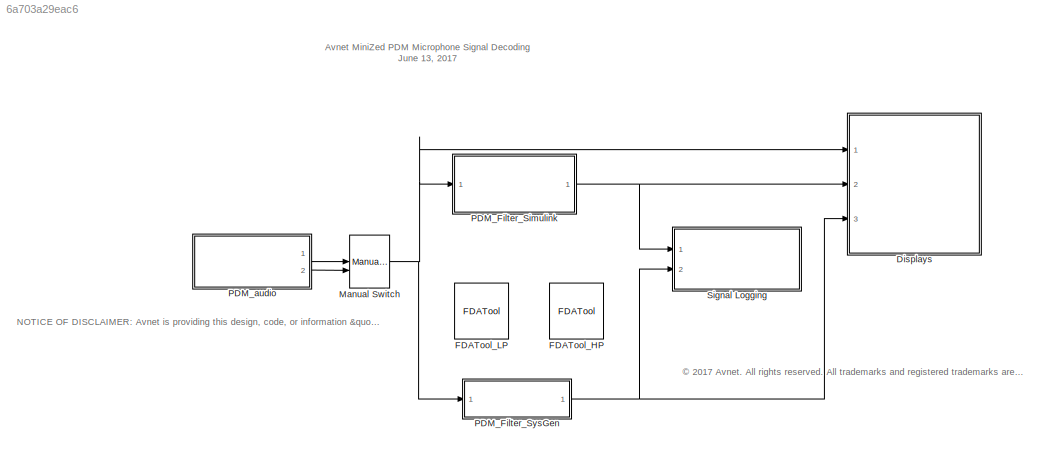
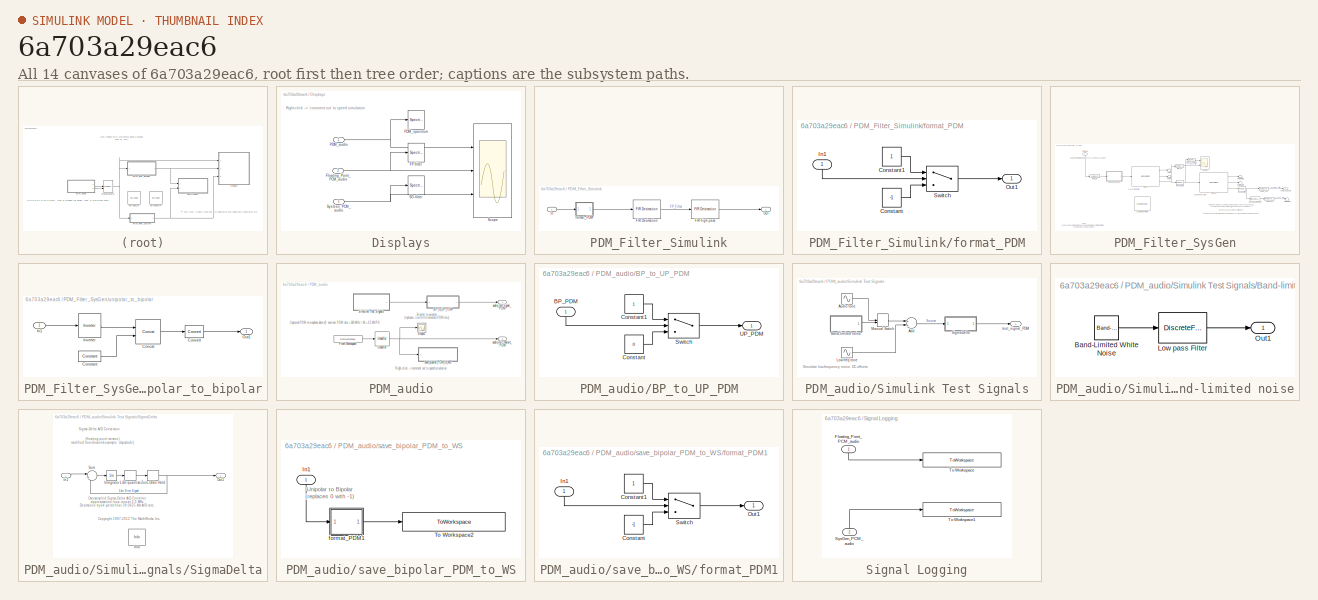
[diagram: thumbnail index - all 14 canvases of the model, root first then tree order]
MODEL slx_6a703a29eac6
KIND model
CONFIG AbsTol = 1e-6
CONFIG EnableMultiTasking = off
CONFIG FixedStep = auto
CONFIG MaxStep = 1/512000
CONFIG MinStep = auto
CONFIG PreLoadFcn = input_rate = 2.5e6;\ninput_period = 1/input_rate;\ndecimation_factor = 64;\n\n\nila_PDM_data = read_vectored_ILA_PDM_capture('.\ILA_capture\iladata_A440_vectors_1024.csv');\n% ila_PDM_data = read_vectored_ILA_PDM_capture('.\ILA_capture\iladata_speech_vectors_1024.csv');\n\nila_data_struct.time = [];\nila_data_struct.signals.values = ila_PDM_data;
CONFIG RelTol = 1e-3
CONFIG SampleTimeConstraint = Unconstrained
CONFIG Solver = ode5
CONFIG SolverName = ode5
CONFIG StartTime = 0.0
CONFIG StopFcn = p = audioplayer(squeeze(simout_sysgen_PCM_audio.Data), input_rate/decimation_factor);\nplay(p, [1 (get(p, 'SampleRate') * 1)]);\n\n% p = audioplayer(squeeze(simout_floating_point_PCM_audio.Data), input_rate/decimation_factor);\n% play(p, [1 (get(p, 'SampleRate') * 1)]);
CONFIG StopTime = 2*pi*200000/2.4e6
BLOCK [SubSystem] Displays
  Ports = [3]
  RequestExecContextInheritance = off
  Variant = off
BLOCK [SpectrumAnalyzer] Displays/FP-filter
  Commented = on
  NumInputPorts = 1
  Ports = [1]
  ScopeSpecificationString = spbscopes.SpectrumAnalyzerBlockCfg('CurrentConfiguration', extmgr.ConfigurationSet(extmgr.Configuration('Core','General UI',true),extmgr.Configuration('Core','Source UI',true),extmgr.Configuration('Sources','WiredSimulink',true),extmgr.Configuration('Sources','Simulink',false),extmgr.Configuration('Sources','File',false),extmgr.Configuration('Sources','Workspace',false),extmgr.Configuration('Sourc...<+1890ch>
BLOCK [Inport] Displays/Floating_Point_PCM_audio
  IconDisplay = Port number
  Port = 2
BLOCK [Inport] Displays/PDM_audio
  IconDisplay = Port number
BLOCK [SpectrumAnalyzer] Displays/PDM_spectrum
  Commented = on
  NumInputPorts = 1
  Ports = [1]
  ScopeSpecificationString = spbscopes.SpectrumAnalyzerBlockCfg('CurrentConfiguration', extmgr.ConfigurationSet(extmgr.Configuration('Core','General UI',true),extmgr.Configuration('Core','Source UI',true),extmgr.Configuration('Sources','WiredSimulink',true),extmgr.Configuration('Sources','Simulink',false),extmgr.Configuration('Sources','File',false),extmgr.Configuration('Sources','Workspace',false),extmgr.Configuration('Sourc...<+2104ch>
BLOCK [SpectrumAnalyzer] Displays/SG-filter
  Commented = on
  NumInputPorts = 1
  Ports = [1]
  ScopeSpecificationString = spbscopes.SpectrumAnalyzerBlockCfg('CurrentConfiguration', extmgr.ConfigurationSet(extmgr.Configuration('Core','General UI',true),extmgr.Configuration('Core','Source UI',true),extmgr.Configuration('Sources','WiredSimulink',true),extmgr.Configuration('Sources','Streaming',false),extmgr.Configuration('Sources','Simulink',false),extmgr.Configuration('Sources','SPTool',false),extmgr.Configuration('Sou...<+1886ch>
BLOCK [Scope] Displays/Scope
  Commented = on
  NumInputPorts = 3
  Ports = [3]
  ScopeSpecificationString = Simulink.scopes.TimeScopeBlockCfg('CurrentConfiguration', extmgr.ConfigurationSet(extmgr.Configuration('Core','General UI',true),extmgr.Configuration('Core','Source UI',true),extmgr.Configuration('Sources','WiredSimulink',true,'DataLoggingVariableName','ScopeData1','DataLoggingSaveFormat','StructureWithTime','DataLoggingMaxPoints','90000','DataLoggingDecimation','1','DataLoggingDecimateData',true)...<+3175ch>
BLOCK [Inport] Displays/SysGen_PCM_audio
  IconDisplay = Port number
  Port = 3
BLOCK [Reference] FDATool_HP  REF=xbsIndex_r4/FDATool
  Ports = []
  SourceBlock = xbsIndex_r4/FDATool
  SourceType = Xilinx FDATool Interface Block
  UserDataPersistent = on
BLOCK [Reference] FDATool_LP  REF=xbsIndex_r4/FDATool
  Ports = []
  SourceBlock = xbsIndex_r4/FDATool
  SourceType = Xilinx FDATool Interface Block
  UserDataPersistent = on
BLOCK [ManualSwitch] Manual Switch
  CurrentSetting = 0
BLOCK [SubSystem] PDM_Filter_Simulink
  Ports = [1, 1]
  RequestExecContextInheritance = off
  Variant = off
BLOCK [Reference] PDM_Filter_Simulink/FIR Decimation  REF=dspmlti4/FIR
Decimation
  Ports = [1, 1]
  SourceBlock = dspmlti4/FIR\nDecimation
  SourceType = FIR Decimation
  UserDataPersistent = on
BLOCK [Reference] PDM_Filter_Simulink/FIR high-pass   REF=dspmlti4/FIR
Decimation
  Ports = [1, 1]
  SourceBlock = dspmlti4/FIR\nDecimation
  SourceType = FIR Decimation
  UserDataPersistent = on
BLOCK [Inport] PDM_Filter_Simulink/In
  IconDisplay = Port number
BLOCK [Outport] PDM_Filter_Simulink/Out
  IconDisplay = Port number
BLOCK [SubSystem] PDM_Filter_Simulink/format_PDM
  Ports = [1, 1]
  RequestExecContextInheritance = off
  Variant = off
BLOCK [Constant] PDM_Filter_Simulink/format_PDM/Constant
  Value = -1
BLOCK [Constant] PDM_Filter_Simulink/format_PDM/Constant1
BLOCK [Inport] PDM_Filter_Simulink/format_PDM/In1
  IconDisplay = Port number
BLOCK [Outport] PDM_Filter_Simulink/format_PDM/Out1
  IconDisplay = Port number
BLOCK [Switch] PDM_Filter_Simulink/format_PDM/Switch
  Criteria = u2 > Threshold
  InputSameDT = off
  SaturateOnIntegerOverflow = off
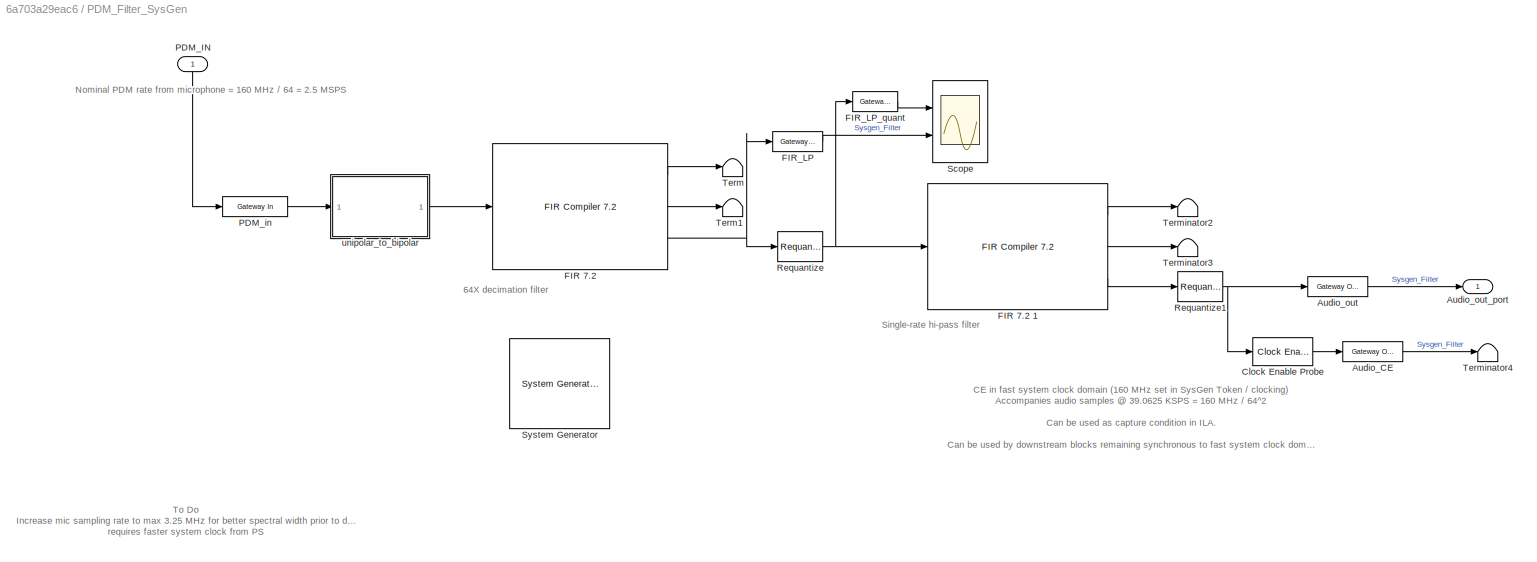
BLOCK [SubSystem] PDM_Filter_SysGen
  Ports = [1, 1]
  RequestExecContextInheritance = off
  Variant = off
BLOCK [Reference] PDM_Filter_SysGen/ System Generator  REF=xbsIndex_r4/ System Generator
  AttributesFormatString = System\nGenerator
  Ports = []
  SourceBlock = xbsIndex_r4/ System Generator
  SourceType = Xilinx System Generator Block
  Tag = genX
  UserDataPersistent = on
BLOCK [Reference] PDM_Filter_SysGen/Audio_CE  REF=xbsIndex_r4/Gateway Out
  Ports = [1, 1]
  SourceBlock = xbsIndex_r4/Gateway Out
  SourceType = Xilinx Gateway Out Block
BLOCK [Reference] PDM_Filter_SysGen/Audio_out  REF=xbsIndex_r4/Gateway Out
  Ports = [1, 1]
  SourceBlock = xbsIndex_r4/Gateway Out
  SourceType = Xilinx Gateway Out Block
BLOCK [Outport] PDM_Filter_SysGen/Audio_out_port
  IconDisplay = Port number
BLOCK [Reference] PDM_Filter_SysGen/Clock Enable Probe  REF=xbsIndex_r4/Clock Enable Probe
  Ports = [1, 1]
  SourceBlock = xbsIndex_r4/Clock Enable Probe
  SourceType = Xilinx Clock Enable Probe Block
BLOCK [Reference] PDM_Filter_SysGen/FIR 7.2   REF=xbsIndex_r4/FIR Compiler 7.2 
  Ports = [1, 3]
  SourceBlock = xbsIndex_r4/FIR Compiler 7.2
  SourceType = Xilinx FIR Compiler 7.2 Block
BLOCK [Reference] PDM_Filter_SysGen/FIR 7.2 1  REF=xbsIndex_r4/FIR Compiler 7.2 
  Ports = [1, 3]
  SourceBlock = xbsIndex_r4/FIR Compiler 7.2
  SourceType = Xilinx FIR Compiler 7.2 Block
BLOCK [Reference] PDM_Filter_SysGen/FIR_LP  REF=xbsIndex_r4/Gateway Out
  Ports = [1, 1]
  SourceBlock = xbsIndex_r4/Gateway Out
  SourceType = Xilinx Gateway Out Block
BLOCK [Reference] PDM_Filter_SysGen/FIR_LP_quant  REF=xbsIndex_r4/Gateway Out
  Ports = [1, 1]
  SourceBlock = xbsIndex_r4/Gateway Out
  SourceType = Xilinx Gateway Out Block
BLOCK [Inport] PDM_Filter_SysGen/PDM_IN
  IconDisplay = Port number
BLOCK [Reference] PDM_Filter_SysGen/PDM_in  REF=xbsIndex_r4/Gateway In
  Ports = [1, 1]
  SourceBlock = xbsIndex_r4/Gateway In
  SourceType = Xilinx Gateway In Block
BLOCK [Reference] PDM_Filter_SysGen/Requantize  REF=xbsIndex_r4/Requantize
  Ports = [1, 1]
  SourceBlock = xbsIndex_r4/Requantize
  SourceType = Xilinx Requantize Block
BLOCK [Reference] PDM_Filter_SysGen/Requantize1  REF=xbsIndex_r4/Requantize
  Ports = [1, 1]
  SourceBlock = xbsIndex_r4/Requantize
  SourceType = Xilinx Requantize Block
BLOCK [Scope] PDM_Filter_SysGen/Scope
  NumInputPorts = 2
  Ports = [2]
  ScopeSpecificationString = Simulink.scopes.TimeScopeBlockCfg('CurrentConfiguration', extmgr.ConfigurationSet(extmgr.Configuration('Core','General UI',true),extmgr.Configuration('Core','Source UI',true),extmgr.Configuration('Sources','WiredSimulink',true,'DataLoggingVariableName','ScopeData1'),extmgr.Configuration('Visuals','Time Domain',true,'SerializedDisplays',{struct('MinYLimReal','-1.12341','MaxYLimReal','2.18103','YLab...<+2115ch>
BLOCK [Terminator] PDM_Filter_SysGen/Term
BLOCK [Terminator] PDM_Filter_SysGen/Term1
BLOCK [Terminator] PDM_Filter_SysGen/Terminator2
BLOCK [Terminator] PDM_Filter_SysGen/Terminator3
BLOCK [Terminator] PDM_Filter_SysGen/Terminator4
BLOCK [SubSystem] PDM_Filter_SysGen/unipolar_to_bipolar
  Ports = [1, 1]
  RequestExecContextInheritance = off
  Variant = off
BLOCK [Reference] PDM_Filter_SysGen/unipolar_to_bipolar/Concat  REF=xbsIndex_r4/Concat
  Ports = [2, 1]
  SourceBlock = xbsIndex_r4/Concat
  SourceType = Xilinx Bus Concatenator Block
BLOCK [Reference] PDM_Filter_SysGen/unipolar_to_bipolar/Constant  REF=xbsIndex_r4/Constant
  Ports = [0, 1]
  SourceBlock = xbsIndex_r4/Constant
  SourceType = Xilinx Constant Block Block
BLOCK [Reference] PDM_Filter_SysGen/unipolar_to_bipolar/Convert  REF=xbsIndex_r4/Convert
  Ports = [1, 1]
  SourceBlock = xbsIndex_r4/Convert
  SourceType = Xilinx Type Converter Block
BLOCK [Inport] PDM_Filter_SysGen/unipolar_to_bipolar/In1
  IconDisplay = Port number
BLOCK [Reference] PDM_Filter_SysGen/unipolar_to_bipolar/Inverter  REF=xbsIndex_r4/Inverter
  Ports = [1, 1]
  SourceBlock = xbsIndex_r4/Inverter
  SourceType = Xilinx Inverter Block
BLOCK [Outport] PDM_Filter_SysGen/unipolar_to_bipolar/Out1
  IconDisplay = Port number
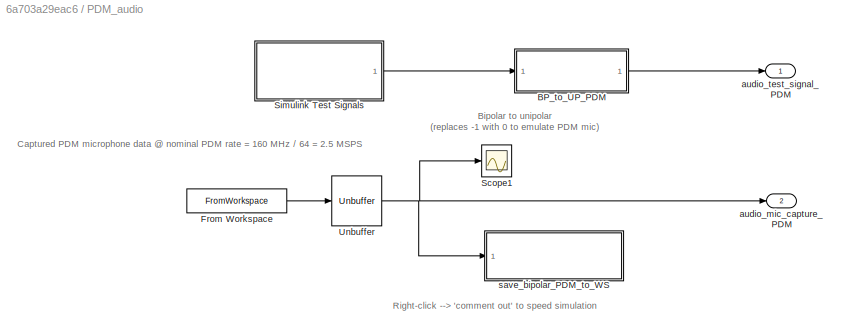
BLOCK [SubSystem] PDM_audio
  Ports = [0, 2]
  RequestExecContextInheritance = off
  Variant = off
BLOCK [SubSystem] PDM_audio/BP_to_UP_PDM
  Ports = [1, 1]
  RequestExecContextInheritance = off
  Variant = off
BLOCK [Inport] PDM_audio/BP_to_UP_PDM/BP_PDM
  IconDisplay = Port number
BLOCK [Constant] PDM_audio/BP_to_UP_PDM/Constant
  Value = 0
BLOCK [Constant] PDM_audio/BP_to_UP_PDM/Constant1
BLOCK [Switch] PDM_audio/BP_to_UP_PDM/Switch
  Criteria = u2 > Threshold
  InputSameDT = off
  SaturateOnIntegerOverflow = off
BLOCK [Outport] PDM_audio/BP_to_UP_PDM/UP_PDM
  IconDisplay = Port number
BLOCK [FromWorkspace] PDM_audio/From Workspace
  Interpolate = off
  OutDataTypeStr = double
  OutputAfterFinalValue = Cyclic repetition
  SampleTime = input_period*1024
  VariableName = ila_data_struct
  ZeroCross = on
BLOCK [Scope] PDM_audio/Scope1
  Commented = on
  NumInputPorts = 1
  Ports = [1]
  ScopeSpecificationString = Simulink.scopes.TimeScopeBlockCfg('CurrentConfiguration', extmgr.ConfigurationSet(extmgr.Configuration('Core','General UI',true),extmgr.Configuration('Core','Source UI',true),extmgr.Configuration('Sources','WiredSimulink',true,'DataLoggingVariableName','ScopeData1'),extmgr.Configuration('Visuals','Time Domain',true,'SerializedDisplays',{struct('MinYLimReal','-0.125','MaxYLimReal','1.125','YLabelRe...<+1454ch>
BLOCK [SubSystem] PDM_audio/Simulink Test Signals
  Ports = [0, 1]
  RequestExecContextInheritance = off
  Variant = off
BLOCK [Sum] PDM_audio/Simulink Test Signals/Add
  InputSameDT = off
  OutDataTypeStr = Inherit: Inherit via internal rule
  Ports = [2, 1]
  SaturateOnIntegerOverflow = off
BLOCK [Sin] PDM_audio/Simulink Test Signals/Audio tone
  Amplitude = 0.5
  Frequency = 2*pi*audio_tone_freq
  Ports = [0, 1]
  SampleTime = input_period
BLOCK [SubSystem] PDM_audio/Simulink Test Signals/Band-limited noise
  Ports = [0, 1]
  RequestExecContextInheritance = off
  Variant = off
BLOCK [Reference] PDM_audio/Simulink Test Signals/Band-limited noise/Band-Limited White Noise  REF=simulink/Sources/Band-Limited
White Noise
  Ports = [0, 1]
  SourceBlock = simulink/Sources/Band-Limited\nWhite Noise
  SourceType = Band-Limited White Noise.
BLOCK [DiscreteFir] PDM_audio/Simulink Test Signals/Band-limited noise/Low pass Filter
  Coefficients = xlfda_numerator([bdroot '/FDATool_LP'])
  InputPortMap = u0
  OutputPortMap = o0
  Ports = [1, 1]
BLOCK [Outport] PDM_audio/Simulink Test Signals/Band-limited noise/Out1
  IconDisplay = Port number
BLOCK [Sin] PDM_audio/Simulink Test Signals/Low freq tone
  Amplitude = 0.0
  Frequency = 2*pi*sub_audio_freq
  Ports = [0, 1]
  SampleTime = input_period
BLOCK [ManualSwitch] PDM_audio/Simulink Test Signals/Manual Switch
BLOCK [SubSystem] PDM_audio/Simulink Test Signals/SigmaDelta
  Ports = [1, 1]
  RequestExecContextInheritance = off
  Variant = off
BLOCK [Signum] PDM_audio/Simulink Test Signals/SigmaDelta/1-Bit quantizer
BLOCK [Inport] PDM_audio/Simulink Test Signals/SigmaDelta/In1
  IconDisplay = Port number
BLOCK [Reference] PDM_audio/Simulink Test Signals/SigmaDelta/Info  REF=dspmisc/Info
  Ports = []
  SourceBlock = dspmisc/Info
  SourceType = Info
BLOCK [Integrator] PDM_audio/Simulink Test Signals/SigmaDelta/Integrator
  Ports = [1, 1]
BLOCK [Outport] PDM_audio/Simulink Test Signals/SigmaDelta/Out1
  IconDisplay = Port number
BLOCK [Sum] PDM_audio/Simulink Test Signals/SigmaDelta/Sum
  IconShape = round
  Inputs = |+-
  Ports = [2, 1]
BLOCK [ZeroOrderHold] PDM_audio/Simulink Test Signals/SigmaDelta/Zero-Order Hold
  SampleTime = input_period
BLOCK [Outport] PDM_audio/Simulink Test Signals/test_signal_PDM
  IconDisplay = Port number
BLOCK [Unbuffer] PDM_audio/Unbuffer
  Ports = [1, 1]
  SampleBasedProcessing = Same as frame based
BLOCK [Outport] PDM_audio/audio_mic_capture_PDM
  IconDisplay = Port number
  Port = 2
BLOCK [Outport] PDM_audio/audio_test_signal_PDM
  IconDisplay = Port number
BLOCK [SubSystem] PDM_audio/save_bipolar_PDM_to_WS
  Commented = on
  Ports = [1]
  RequestExecContextInheritance = off
  Variant = off
BLOCK [Inport] PDM_audio/save_bipolar_PDM_to_WS/In1
  IconDisplay = Port number
BLOCK [ToWorkspace] PDM_audio/save_bipolar_PDM_to_WS/To Workspace2
  FixptAsFi = on
  MaxDataPoints = inf
  Ports = [1]
  SampleTime = -1
  Save2DSignal = 3-D array (concatenate along third dimension)
  SaveFormat = Timeseries
  VariableName = simout_captured_data_PDM_bipolar
BLOCK [SubSystem] PDM_audio/save_bipolar_PDM_to_WS/format_PDM1
  Ports = [1, 1]
  RequestExecContextInheritance = off
  Variant = off
BLOCK [Constant] PDM_audio/save_bipolar_PDM_to_WS/format_PDM1/Constant
  Value = -1
BLOCK [Constant] PDM_audio/save_bipolar_PDM_to_WS/format_PDM1/Constant1
BLOCK [Inport] PDM_audio/save_bipolar_PDM_to_WS/format_PDM1/In1
  IconDisplay = Port number
BLOCK [Outport] PDM_audio/save_bipolar_PDM_to_WS/format_PDM1/Out1
  IconDisplay = Port number
BLOCK [Switch] PDM_audio/save_bipolar_PDM_to_WS/format_PDM1/Switch
  Criteria = u2 > Threshold
  InputSameDT = off
  SaturateOnIntegerOverflow = off
BLOCK [SubSystem] Signal Logging
  Ports = [2]
  RequestExecContextInheritance = off
  Variant = off
BLOCK [Inport] Signal Logging/Floating_Point_PCM_audio
  IconDisplay = Port number
BLOCK [Inport] Signal Logging/SysGen_PCM_audio
  IconDisplay = Port number
  Port = 2
BLOCK [ToWorkspace] Signal Logging/To Workspace
  FixptAsFi = on
  MaxDataPoints = inf
  Ports = [1]
  SampleTime = -1
  Save2DSignal = 3-D array (concatenate along third dimension)
  SaveFormat = Timeseries
  VariableName = simout_floating_point_PCM_audio
BLOCK [ToWorkspace] Signal Logging/To Workspace1
  FixptAsFi = on
  MaxDataPoints = inf
  Ports = [1]
  SampleTime = -1
  Save2DSignal = 3-D array (concatenate along third dimension)
  SaveFormat = Timeseries
  VariableName = simout_sysgen_PCM_audio
ANNOTATION (root): Avnet MiniZed PDM Microphone Signal D ecoding June 13, 2017
ANNOTATION (root): NOTICE OF DISCLAIMER: Avnet is providing this design, code, or information "as is." By providing the design, code, or information as one possible implementation of this feature, application, or standard, Avnet makes no representation that this implementation is free from any claims of infringement. You are responsible for obtaining any rights you may require for your implementation. Avnet expressl...<+294ch>
ANNOTATION (root): <copyright redacted>
ANNOTATION Displays: Right-click --> 'comment out' to speed simulation
ANNOTATION PDM_Filter_SysGen: 64X decimation filter
ANNOTATION PDM_Filter_SysGen: Single-rate hi-pass filter
ANNOTATION PDM_Filter_SysGen: To Do Increase mic sampling rate to max 3.25 MHz for better spectral width prior to decimation requires faster system clock from PS
ANNOTATION PDM_Filter_SysGen: CE in fast system clock domain (160 MHz set in SysGen Token / clocking) Accompanies audio samples @ 39.0625 KSPS = 160 MHz / 64^2 Can be used as capture condition in ILA. Can be used by downstream blocks remaining synchronous to fast system clock domain to take advantage of computation cycles. Alternatively, user could cross to the audio sampling clock domain (160 MHz / 64^2 = 39.0625 KSPS) to red...<+9ch>
ANNOTATION PDM_Filter_SysGen: Nominal PDM rate from microphone = 160 MHz / 64 = 2.5 MSPS
ANNOTATION PDM_audio: Bipolar to unipolar (replaces -1 with 0 to emulate PDM mic)
ANNOTATION PDM_audio: Captured PDM microphone data @ nominal PDM rate = 160 MHz / 64 = 2.5 MSPS
ANNOTATION PDM_audio: Right-click --> 'comment out' to speed simulation
ANNOTATION PDM_audio/Simulink Test Signals: Simulate low-frequency noise, DC offsets
ANNOTATION PDM_audio/Simulink Test Signals/SigmaDelta: (floating-point version) modified from Simulink example 'dspsdadc')
ANNOTATION PDM_audio/Simulink Test Signals/SigmaDelta: <copyright redacted>
ANNOTATION PDM_audio/Simulink Test Signals/SigmaDelta: Oversampled Sigma-Delta A/D Converter approximation loop runs at 2.5 MHz. Decimation by 64 yields final 39.0625 kHz A/D rate.
ANNOTATION PDM_audio/Simulink Test Signals/SigmaDelta: Sigma-Delta A/D Conversion
ANNOTATION PDM_audio/save_bipolar_PDM_to_WS: Unipolar to Bipolar (replaces 0 with -1)
NET Displays/Floating_Point_PCM_audio:1 -> Displays/FP-filter:1, Displays/Scope:2
NET Displays/PDM_audio:1 -> Displays/PDM_spectrum:1, Displays/Scope:1
NET Displays/SysGen_PCM_audio:1 -> Displays/SG-filter:1, Displays/Scope:3
NET Manual Switch:1 -> Displays:1, PDM_Filter_Simulink:1, PDM_Filter_SysGen:1
LINE PDM_Filter_Simulink/FIR Decimation:1 -> PDM_Filter_Simulink/FIR high-pass :1
LINE PDM_Filter_Simulink/FIR high-pass :1 -> PDM_Filter_Simulink/Out:1
LINE PDM_Filter_Simulink/In:1 -> PDM_Filter_Simulink/format_PDM:1
LINE PDM_Filter_Simulink/format_PDM/Constant1:1 -> PDM_Filter_Simulink/format_PDM/Switch:1
LINE PDM_Filter_Simulink/format_PDM/Constant:1 -> PDM_Filter_Simulink/format_PDM/Switch:3
LINE PDM_Filter_Simulink/format_PDM/In1:1 -> PDM_Filter_Simulink/format_PDM/Switch:2
LINE PDM_Filter_Simulink/format_PDM/Switch:1 -> PDM_Filter_Simulink/format_PDM/Out1:1
LINE PDM_Filter_Simulink/format_PDM:1 -> PDM_Filter_Simulink/FIR Decimation:1
NET PDM_Filter_Simulink:1 -> Displays:2, Signal Logging:1
LINE PDM_Filter_SysGen/Audio_CE:1 -> PDM_Filter_SysGen/Terminator4:1
LINE PDM_Filter_SysGen/Audio_out:1 -> PDM_Filter_SysGen/Audio_out_port:1
LINE PDM_Filter_SysGen/Clock Enable Probe:1 -> PDM_Filter_SysGen/Audio_CE:1
LINE PDM_Filter_SysGen/FIR 7.2 1:1 -> PDM_Filter_SysGen/Terminator2:1
LINE PDM_Filter_SysGen/FIR 7.2 1:2 -> PDM_Filter_SysGen/Terminator3:1
LINE PDM_Filter_SysGen/FIR 7.2 1:3 -> PDM_Filter_SysGen/Requantize1:1
LINE PDM_Filter_SysGen/FIR 7.2 :1 -> PDM_Filter_SysGen/Term:1
LINE PDM_Filter_SysGen/FIR 7.2 :2 -> PDM_Filter_SysGen/Term1:1
NET PDM_Filter_SysGen/FIR 7.2 :3 -> PDM_Filter_SysGen/FIR_LP:1, PDM_Filter_SysGen/Requantize:1
LINE PDM_Filter_SysGen/FIR_LP:1 -> PDM_Filter_SysGen/Scope:2
LINE PDM_Filter_SysGen/FIR_LP_quant:1 -> PDM_Filter_SysGen/Scope:1
LINE PDM_Filter_SysGen/PDM_IN:1 -> PDM_Filter_SysGen/PDM_in:1
LINE PDM_Filter_SysGen/PDM_in:1 -> PDM_Filter_SysGen/unipolar_to_bipolar:1
NET PDM_Filter_SysGen/Requantize1:1 -> PDM_Filter_SysGen/Audio_out:1, PDM_Filter_SysGen/Clock Enable Probe:1
NET PDM_Filter_SysGen/Requantize:1 -> PDM_Filter_SysGen/FIR 7.2 1:1, PDM_Filter_SysGen/FIR_LP_quant:1
LINE PDM_Filter_SysGen/unipolar_to_bipolar/Concat:1 -> PDM_Filter_SysGen/unipolar_to_bipolar/Convert:1
LINE PDM_Filter_SysGen/unipolar_to_bipolar/Constant:1 -> PDM_Filter_SysGen/unipolar_to_bipolar/Concat:2
LINE PDM_Filter_SysGen/unipolar_to_bipolar/Convert:1 -> PDM_Filter_SysGen/unipolar_to_bipolar/Out1:1
LINE PDM_Filter_SysGen/unipolar_to_bipolar/In1:1 -> PDM_Filter_SysGen/unipolar_to_bipolar/Inverter:1
LINE PDM_Filter_SysGen/unipolar_to_bipolar/Inverter:1 -> PDM_Filter_SysGen/unipolar_to_bipolar/Concat:1
LINE PDM_Filter_SysGen/unipolar_to_bipolar:1 -> PDM_Filter_SysGen/FIR 7.2 :1
NET PDM_Filter_SysGen:1 -> Displays:3, Signal Logging:2
LINE PDM_audio/BP_to_UP_PDM/BP_PDM:1 -> PDM_audio/BP_to_UP_PDM/Switch:2
LINE PDM_audio/BP_to_UP_PDM/Constant1:1 -> PDM_audio/BP_to_UP_PDM/Switch:1
LINE PDM_audio/BP_to_UP_PDM/Constant:1 -> PDM_audio/BP_to_UP_PDM/Switch:3
LINE PDM_audio/BP_to_UP_PDM/Switch:1 -> PDM_audio/BP_to_UP_PDM/UP_PDM:1
LINE PDM_audio/BP_to_UP_PDM:1 -> PDM_audio/audio_test_signal_PDM:1
LINE PDM_audio/From Workspace:1 -> PDM_audio/Unbuffer:1
LINE PDM_audio/Simulink Test Signals/Add:1 -> PDM_audio/Simulink Test Signals/SigmaDelta:1
LINE PDM_audio/Simulink Test Signals/Audio tone:1 -> PDM_audio/Simulink Test Signals/Manual Switch:1
LINE PDM_audio/Simulink Test Signals/Band-limited noise/Band-Limited White Noise:1 -> PDM_audio/Simulink Test Signals/Band-limited noise/Low pass Filter:1
LINE PDM_audio/Simulink Test Signals/Band-limited noise/Low pass Filter:1 -> PDM_audio/Simulink Test Signals/Band-limited noise/Out1:1
LINE PDM_audio/Simulink Test Signals/Band-limited noise:1 -> PDM_audio/Simulink Test Signals/Manual Switch:2
LINE PDM_audio/Simulink Test Signals/Low freq tone:1 -> PDM_audio/Simulink Test Signals/Add:2
LINE PDM_audio/Simulink Test Signals/Manual Switch:1 -> PDM_audio/Simulink Test Signals/Add:1
LINE PDM_audio/Simulink Test Signals/SigmaDelta/1-Bit quantizer:1 -> PDM_audio/Simulink Test Signals/SigmaDelta/Zero-Order Hold:1
LINE PDM_audio/Simulink Test Signals/SigmaDelta/In1:1 -> PDM_audio/Simulink Test Signals/SigmaDelta/Sum:1
LINE PDM_audio/Simulink Test Signals/SigmaDelta/Integrator:1 -> PDM_audio/Simulink Test Signals/SigmaDelta/1-Bit quantizer:1
LINE PDM_audio/Simulink Test Signals/SigmaDelta/Sum:1 -> PDM_audio/Simulink Test Signals/SigmaDelta/Integrator:1
NET PDM_audio/Simulink Test Signals/SigmaDelta/Zero-Order Hold:1 -> PDM_audio/Simulink Test Signals/SigmaDelta/Out1:1, PDM_audio/Simulink Test Signals/SigmaDelta/Sum:2
LINE PDM_audio/Simulink Test Signals/SigmaDelta:1 -> PDM_audio/Simulink Test Signals/test_signal_PDM:1
LINE PDM_audio/Simulink Test Signals:1 -> PDM_audio/BP_to_UP_PDM:1
NET PDM_audio/Unbuffer:1 -> PDM_audio/Scope1:1, PDM_audio/audio_mic_capture_PDM:1, PDM_audio/save_bipolar_PDM_to_WS:1
LINE PDM_audio/save_bipolar_PDM_to_WS/In1:1 -> PDM_audio/save_bipolar_PDM_to_WS/format_PDM1:1
LINE PDM_audio/save_bipolar_PDM_to_WS/format_PDM1/Constant1:1 -> PDM_audio/save_bipolar_PDM_to_WS/format_PDM1/Switch:1
LINE PDM_audio/save_bipolar_PDM_to_WS/format_PDM1/Constant:1 -> PDM_audio/save_bipolar_PDM_to_WS/format_PDM1/Switch:3
LINE PDM_audio/save_bipolar_PDM_to_WS/format_PDM1/In1:1 -> PDM_audio/save_bipolar_PDM_to_WS/format_PDM1/Switch:2
LINE PDM_audio/save_bipolar_PDM_to_WS/format_PDM1/Switch:1 -> PDM_audio/save_bipolar_PDM_to_WS/format_PDM1/Out1:1
LINE PDM_audio/save_bipolar_PDM_to_WS/format_PDM1:1 -> PDM_audio/save_bipolar_PDM_to_WS/To Workspace2:1
LINE PDM_audio:1 -> Manual Switch:1
LINE PDM_audio:2 -> Manual Switch:2
LINE Signal Logging/Floating_Point_PCM_audio:1 -> Signal Logging/To Workspace:1
LINE Signal Logging/SysGen_PCM_audio:1 -> Signal Logging/To Workspace1:1
note: NET lines group one-source signal fan-out (src -> all destinations, sorted); 1:1 wires keep LINE
